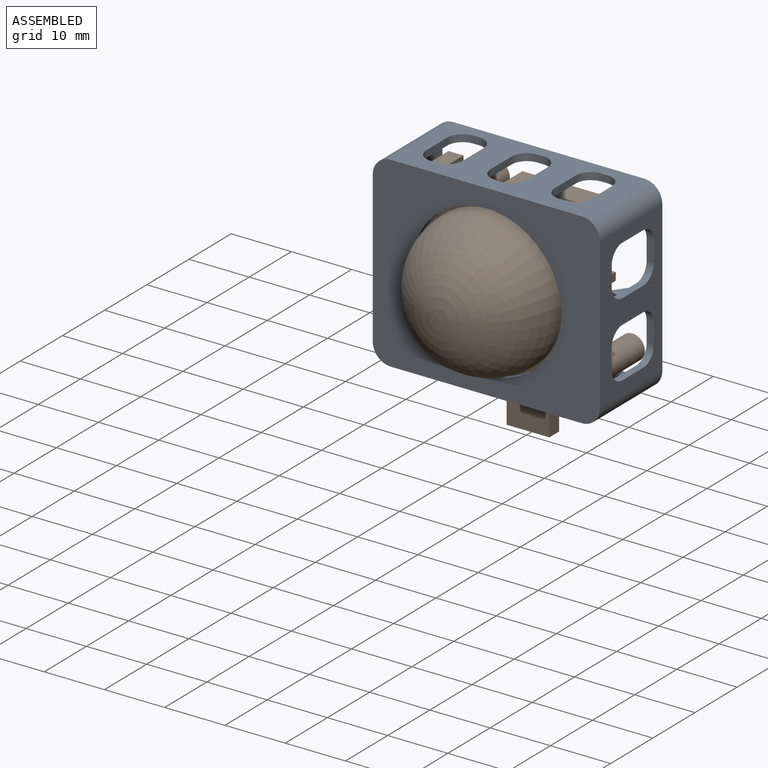
[diagram: assembled view]
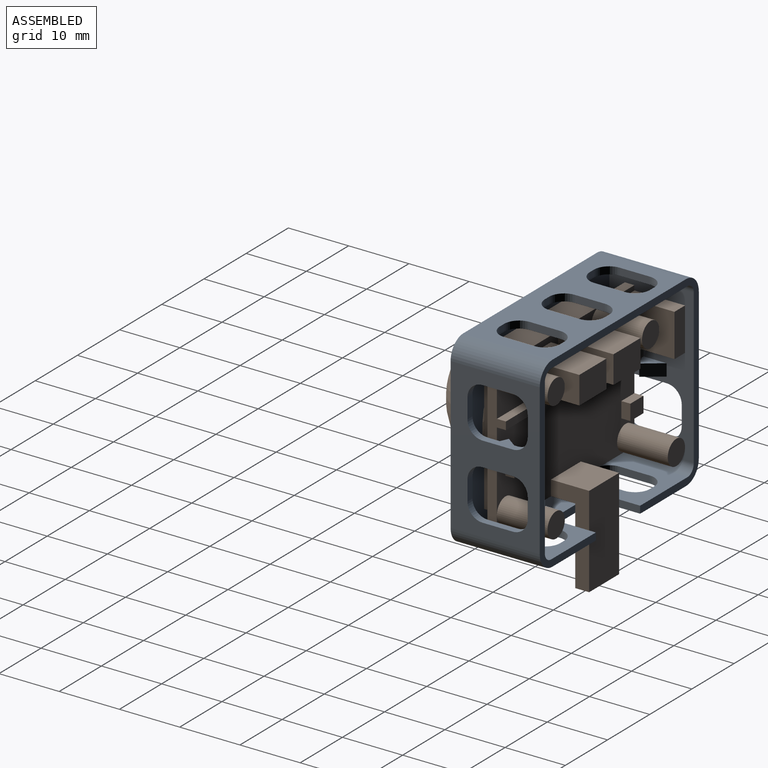
[diagram: assembled view, second angle]
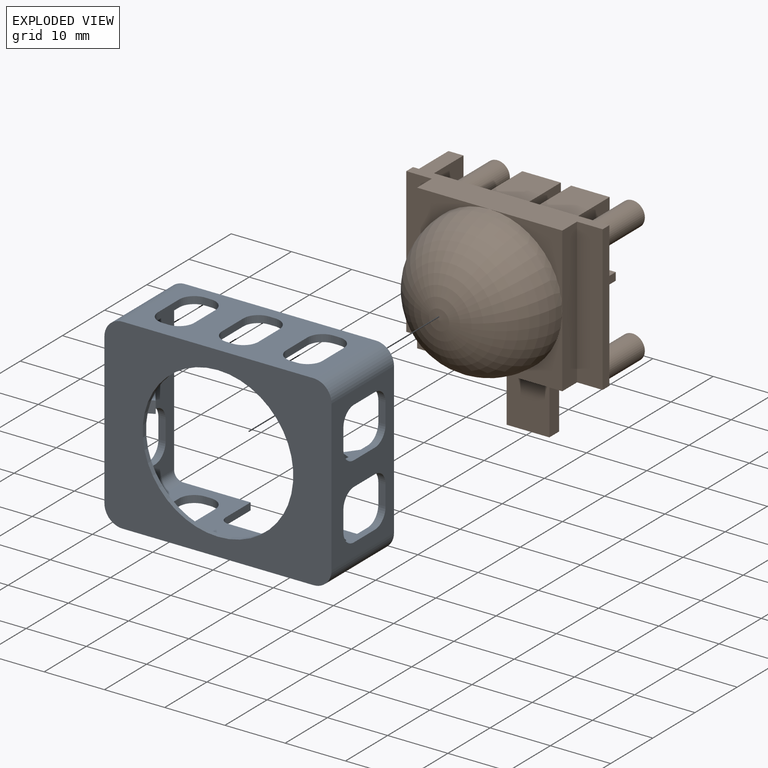
[diagram: exploded view]
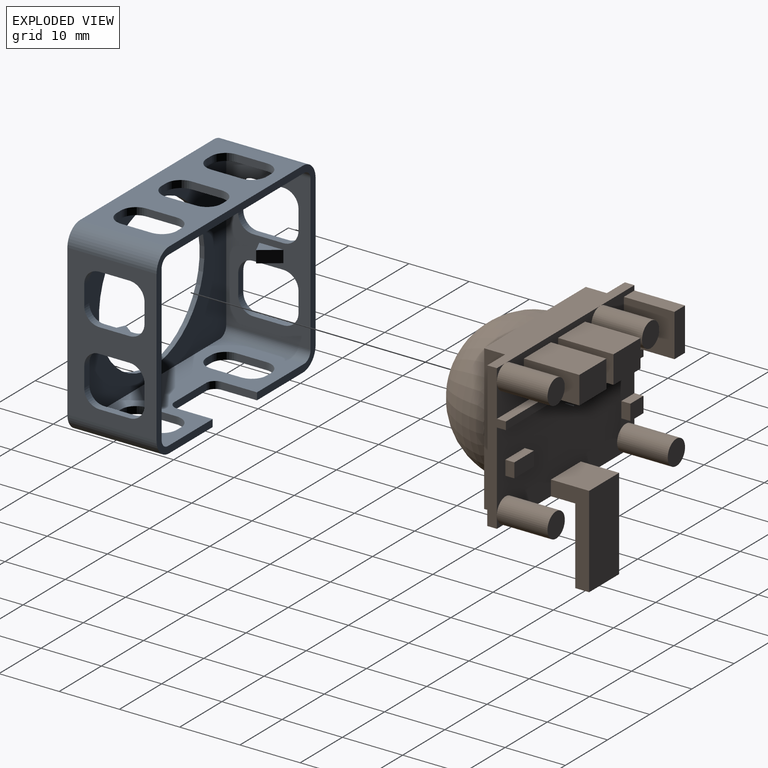
[diagram: exploded view, second angle]
ASSEMBLY  parts=2 mates=2
PART A: 105 faces, bbox 37.7x14.8x31 mm
  f0: plane 32.3x14mm, normal (0,0,1), area 266.2mm2, adj f11,f12,f16,f19,f20,f21,f22,f23
  f1: plane 31.7x14.8mm, normal (0,0,-1), area 283.2mm2, adj f10,f15,f16,f18,f20,f21,f22,f23
  f2: plane 31.7x14.8mm, normal (0,0,1), area 305.3mm2, adj f8,f9,f16,f18,f65,f66,f67,f68
  f3: plane 32.3x14mm, normal (0,0,-1), area 288.3mm2, adj f13,f14,f16,f19,f65,f66,f67,f68
  f4: plane 25.64x14mm, normal (1,0,0), area 195.3mm2, adj f12,f13,f16,f19,f25,f26,f27,f28
  f5: plane 25.04x14.8mm, normal (1,0,0), area 214.9mm2, adj f8,f15,f16,f18,f33,f34,f35,f36
  f6: plane 25.04x14.8mm, normal (-1,0,0), area 214.9mm2, adj f9,f10,f16,f18,f49,f50,f51,f52
  f7: plane 25.64x14mm, normal (-1,0,0), area 195.3mm2, adj f11,f14,f16,f19,f29,f30,f31,f32
  f8: cylinder r=3mm len=14.8mm, axis (0,-1,0), area 69.7mm2, adj f2,f5,f16,f18
  f9: cylinder r=3mm len=14.8mm, axis (0,-1,0), area 69.7mm2, adj f2,f6,f16,f18
  f10: cylinder r=3mm len=14.8mm, axis (0,-1,0), area 69.7mm2, adj f1,f6,f16,f18
  f11: cylinder r=1.5mm len=14mm, axis (0,-1,0), area 33mm2, adj f0,f7,f16,f19
  f12: cylinder r=1.5mm len=14mm, axis (0,-1,0), area 33mm2, adj f0,f4,f16,f19
  f13: cylinder r=1.5mm len=14mm, axis (0,-1,0), area 33mm2, adj f3,f4,f16,f19
  f14: cylinder r=1.5mm len=14mm, axis (0,-1,0), area 33mm2, adj f3,f7,f16,f19
  f15: cylinder r=3mm len=14.8mm, axis (0,-1,0), area 69.7mm2, adj f1,f5,f16,f18
  f16: plane 37.7x31.04mm, normal (0,1,0), area 140.8mm2, adj f0,f1,f2,f3,f4,f5,f6,f7
  f17: cylinder r=12.5mm len=25mm, axis (0,1,0), area 62.8mm2, adj f18,f19
  f18: plane 37.7x31.04mm, normal (0,-1,0), area 671.6mm2, adj f1,f2,f5,f6,f8,f9,f10,f15
  f19: plane 35.3x28.64mm, normal (0,1,0), area 518.2mm2, adj f0,f3,f4,f7,f11,f12,f13,f14
  f20: plane 5.9x1.2mm, normal (-1,0,0), area 7.1mm2, adj f0,f1,f16,f21
  f21: cylinder r=1.5mm len=1.5mm, axis (0,0,-1), area 2.8mm2, adj f0,f1,f20,f22
  f22: plane 7.5x1.2mm, normal (0,1,0), area 9mm2, adj f0,f1,f21,f23
  f23: cylinder r=1.5mm len=1.5mm, axis (0,0,-1), area 2.8mm2, adj f0,f1,f22,f24
  f24: plane 5.9x1.2mm, normal (1,0,0), area 7.1mm2, adj f0,f1,f16,f23
  f25: plane 2.2x2mm, normal (0.41,-0.91,0), area 4.8mm2, adj f4,f26,f27,f28
  f26: plane 3x2.2mm, normal (0.81,0.59,0), area 7.4mm2, adj f4,f25,f27,f28
  f27: plane 4x2.2mm, normal (0,0,-1), area 4.4mm2, adj f4,f25,f26
  f28: plane 4x2.2mm, normal (0,0,1), area 4.4mm2, adj f4,f25,f26
  f29: plane 3x2.2mm, normal (-0.81,0.59,0), area 7.4mm2, adj f7,f30,f31,f32
  f30: plane 2.2x2mm, normal (-0.41,-0.91,0), area 4.8mm2, adj f7,f29,f31,f32
  f31: plane 4x2.2mm, normal (0,0,1), area 4.4mm2, adj f7,f29,f30
  f32: plane 4x2.2mm, normal (0,0,-1), area 4.4mm2, adj f7,f29,f30
  f33: plane 3.32x1.2mm, normal (0,-1,0), area 4mm2, adj f5,f7,f34,f40
  f34: cylinder r=2.5mm len=2.5mm, axis (1,0,0), area 4.7mm2, adj f5,f7,f33,f35
  f35: plane 5x1.2mm, normal (0,0,1), area 6mm2, adj f5,f7,f34,f36
  f36: cylinder r=2.5mm len=2.5mm, axis (1,0,0), area 4.7mm2, adj f5,f7,f35,f37
  f37: plane 3.32x1.2mm, normal (0,1,0), area 4mm2, adj f5,f7,f36,f38
  f38: cylinder r=2.5mm len=2.5mm, axis (1,0,0), area 4.7mm2, adj f5,f7,f37,f39
  f39: plane 5x1.2mm, normal (0,0,-1), area 6mm2, adj f5,f7,f38,f40
  f40: cylinder r=2.5mm len=2.5mm, axis (1,0,0), area 4.7mm2, adj f5,f7,f33,f39
  f41: cylinder r=2.5mm len=2.5mm, axis (1,0,0), area 4.7mm2, adj f5,f7,f42,f48
  f42: plane 3.32x1.2mm, normal (0,1,0), area 4mm2, adj f5,f7,f41,f43
  f43: cylinder r=2.5mm len=2.5mm, axis (1,0,0), area 4.7mm2, adj f5,f7,f42,f44
  f44: plane 5x1.2mm, normal (0,0,-1), area 6mm2, adj f5,f7,f43,f45
  f45: cylinder r=2.5mm len=2.5mm, axis (1,0,0), area 4.7mm2, adj f5,f7,f44,f46
  f46: plane 3.32x1.2mm, normal (0,-1,0), area 4mm2, adj f5,f7,f45,f47
  f47: cylinder r=2.5mm len=2.5mm, axis (1,0,0), area 4.7mm2, adj f5,f7,f46,f48
  f48: plane 5x1.2mm, normal (0,0,1), area 6mm2, adj f5,f7,f41,f47
  f49: cylinder r=2.5mm len=2.5mm, axis (1,0,0), area 4.7mm2, adj f4,f6,f50,f56
  f50: plane 5x1.2mm, normal (0,0,-1), area 6mm2, adj f4,f6,f49,f51
  f51: cylinder r=2.5mm len=2.5mm, axis (1,0,0), area 4.7mm2, adj f4,f6,f50,f52
  f52: plane 3.32x1.2mm, normal (0,1,0), area 4mm2, adj f4,f6,f51,f53
  f53: cylinder r=2.5mm len=2.5mm, axis (1,0,0), area 4.7mm2, adj f4,f6,f52,f54
  f54: plane 5x1.2mm, normal (0,0,1), area 6mm2, adj f4,f6,f53,f55
  f55: cylinder r=2.5mm len=2.5mm, axis (1,0,0), area 4.7mm2, adj f4,f6,f54,f56
  f56: plane 3.32x1.2mm, normal (0,-1,0), area 4mm2, adj f4,f6,f49,f55
  f57: plane 5x1.2mm, normal (0,0,1), area 6mm2, adj f4,f6,f58,f64
  f58: cylinder r=2.5mm len=2.5mm, axis (1,0,0), area 4.7mm2, adj f4,f6,f57,f59
  f59: plane 3.32x1.2mm, normal (0,-1,0), area 4mm2, adj f4,f6,f58,f60
  f60: cylinder r=2.5mm len=2.5mm, axis (1,0,0), area 4.7mm2, adj f4,f6,f59,f61
  f61: plane 5x1.2mm, normal (0,0,-1), area 6mm2, adj f4,f6,f60,f62
  f62: cylinder r=2.5mm len=2.5mm, axis (1,0,0), area 4.7mm2, adj f4,f6,f61,f63
  f63: plane 3.32x1.2mm, normal (0,1,0), area 4mm2, adj f4,f6,f62,f64
  f64: cylinder r=2.5mm len=2.5mm, axis (1,0,0), area 4.7mm2, adj f4,f6,f57,f63
  f65: cylinder r=2.5mm len=2.5mm, axis (0,0,-1), area 4.7mm2, adj f2,f3,f66,f72
  f66: plane 5x1.2mm, normal (1,0,0), area 6mm2, adj f2,f3,f65,f67
  f67: cylinder r=2.5mm len=2.5mm, axis (0,0,-1), area 4.7mm2, adj f2,f3,f66,f68
  f68: plane 1.2x1mm, normal (0,1,0), area 1.2mm2, adj f2,f3,f67,f69
  f69: cylinder r=2.5mm len=2.5mm, axis (0,0,-1), area 4.7mm2, adj f2,f3,f68,f70
  f70: plane 5x1.2mm, normal (-1,0,0), area 6mm2, adj f2,f3,f69,f71
  f71: cylinder r=2.5mm len=2.5mm, axis (0,0,-1), area 4.7mm2, adj f2,f3,f70,f72
  f72: plane 1.2x1mm, normal (0,-1,0), area 1.2mm2, adj f2,f3,f65,f71
  f73: plane 1.2x1mm, normal (0,-1,0), area 1.2mm2, adj f2,f3,f74,f80
  f74: cylinder r=2.5mm len=2.5mm, axis (0,0,-1), area 4.7mm2, adj f2,f3,f73,f75
  f75: plane 5x1.2mm, normal (1,0,0), area 6mm2, adj f2,f3,f74,f76
  f76: cylinder r=2.5mm len=2.5mm, axis (0,0,-1), area 4.7mm2, adj f2,f3,f75,f77
  f77: plane 1.2x1mm, normal (0,1,0), area 1.2mm2, adj f2,f3,f76,f78
  f78: cylinder r=2.5mm len=2.5mm, axis (0,0,-1), area 4.7mm2, adj f2,f3,f77,f79
  f79: plane 5x1.2mm, normal (-1,0,0), area 6mm2, adj f2,f3,f78,f80
  f80: cylinder r=2.5mm len=2.5mm, axis (0,0,-1), area 4.7mm2, adj f2,f3,f73,f79
  f81: plane 5x1.2mm, normal (-1,0,0), area 6mm2, adj f2,f3,f82,f88
  f82: cylinder r=2.5mm len=2.5mm, axis (0,0,-1), area 4.7mm2, adj f2,f3,f81,f83
  f83: plane 1.2x1mm, normal (0,-1,0), area 1.2mm2, adj f2,f3,f82,f84
  f84: cylinder r=2.5mm len=2.5mm, axis (0,0,-1), area 4.7mm2, adj f2,f3,f83,f85
  f85: plane 5x1.2mm, normal (1,0,0), area 6mm2, adj f2,f3,f84,f86
  f86: cylinder r=2.5mm len=2.5mm, axis (0,0,-1), area 4.7mm2, adj f2,f3,f85,f87
  f87: plane 1.2x1mm, normal (0,1,0), area 1.2mm2, adj f2,f3,f86,f88
  f88: cylinder r=2.5mm len=2.5mm, axis (0,0,-1), area 4.7mm2, adj f2,f3,f81,f87
  f89: plane 5x1.2mm, normal (-1,0,0), area 6mm2, adj f0,f1,f90,f96
  f90: cylinder r=2.5mm len=2.5mm, axis (0,0,1), area 4.7mm2, adj f0,f1,f89,f91
  f91: plane 1.2x1mm, normal (0,-1,0), area 1.2mm2, adj f0,f1,f90,f92
  f92: cylinder r=2.5mm len=2.5mm, axis (0,0,1), area 4.7mm2, adj f0,f1,f91,f93
  f93: plane 5x1.2mm, normal (1,0,0), area 6mm2, adj f0,f1,f92,f94
  f94: cylinder r=2.5mm len=2.5mm, axis (0,0,1), area 4.7mm2, adj f0,f1,f93,f95
  f95: plane 1.2x1mm, normal (0,1,0), area 1.2mm2, adj f0,f1,f94,f96
  f96: cylinder r=2.5mm len=2.5mm, axis (0,0,1), area 4.7mm2, adj f0,f1,f89,f95
  f97: cylinder r=2.5mm len=2.5mm, axis (0,0,1), area 4.7mm2, adj f0,f1,f98,f104
  f98: plane 5x1.2mm, normal (1,0,0), area 6mm2, adj f0,f1,f97,f99
  f99: cylinder r=2.5mm len=2.5mm, axis (0,0,1), area 4.7mm2, adj f0,f1,f98,f100
  f100: plane 1.2x1mm, normal (0,1,0), area 1.2mm2, adj f0,f1,f99,f101
  f101: cylinder r=2.5mm len=2.5mm, axis (0,0,1), area 4.7mm2, adj f0,f1,f100,f102
  f102: plane 5x1.2mm, normal (-1,0,0), area 6mm2, adj f0,f1,f101,f103
  f103: cylinder r=2.5mm len=2.5mm, axis (0,0,1), area 4.7mm2, adj f0,f1,f102,f104
  f104: plane 1.2x1mm, normal (0,-1,0), area 1.2mm2, adj f0,f1,f97,f103
PART B: 64 faces, bbox 32.6x26.4x36.8 mm
  f0: plane 32.6x9.15mm, normal (0,0,1), area 165.3mm2, adj f1,f2,f3,f5,f6,f7,f8,f9
  f1: plane 32.6x24.1mm, normal (0,-1,0), area 591.1mm2, adj f0,f8,f9,f10,f19,f21,f23,f25
  f2: plane 2.05x2.05mm, normal (0,-1,0), area 0.9mm2, adj f0,f8,f21
  f3: plane 2.05x2.05mm, normal (0,-1,0), area 0.9mm2, adj f0,f9,f19
  f4: plane 12.05x12.05mm, normal (0,1,0), area 31.2mm2, adj f10,f13,f16
  f5: plane 12.05x12.05mm, normal (0,1,0), area 31.2mm2, adj f0,f13,f16
  f6: plane 12.05x12.05mm, normal (0,1,0), area 31.2mm2, adj f0,f14,f16
  f7: plane 24.1x4.25mm, normal (0,1,0), area 102.4mm2, adj f0,f8,f10,f13
  f8: plane 24.1x3.1mm, normal (1,0,0), area 40.5mm2, adj f0,f1,f2,f7,f10,f12,f46,f47
  f9: plane 24.1x10mm, normal (-1,0,0), area 104mm2, adj f0,f1,f3,f10,f11,f27,f29,f30
  f10: plane 32.6x5.1mm, normal (0,0,-1), area 136.5mm2, adj f1,f4,f7,f8,f9,f11,f12,f13
  f11: plane 24.1x4.25mm, normal (0,1,0), area 102.4mm2, adj f0,f9,f10,f14
  f12: plane 2.05x2.05mm, normal (0,-1,0), area 0.9mm2, adj f8,f10,f23
  f13: plane 24.1x3.5mm, normal (1,0,0), area 84.4mm2, adj f0,f4,f5,f7,f10
  f14: plane 24.1x3.5mm, normal (-1,0,0), area 84.4mm2, adj f0,f6,f10,f11,f15
  f15: plane 12.05x12.05mm, normal (0,1,0), area 31.2mm2, adj f10,f14,f16
  f16: cylinder r=12.05mm len=24.1mm, axis (0,-1,0), area 7.6mm2, adj f4,f5,f6,f15,f18
  f17: plane 0.1x0.1mm, normal (0,1,0), area 0mm2, adj f18
  f18: torus R=0.05mm, axis (0,-1,0), area 910.7mm2, adj f16,f17
  f19: cylinder r=2.05mm len=8.4mm, axis (0,1,0), area 108.2mm2, adj f1,f3,f20
  f20: plane 4.1x4.1mm, normal (0,-1,0), area 13.2mm2, adj f19
  f21: cylinder r=2.05mm len=8.4mm, axis (0,1,0), area 108.2mm2, adj f1,f2,f22
  f22: plane 4.1x4.1mm, normal (0,-1,0), area 13.2mm2, adj f21
  f23: cylinder r=2.05mm len=8.4mm, axis (0,1,0), area 108.2mm2, adj f1,f12,f24
  f24: plane 4.1x4.1mm, normal (0,-1,0), area 13.2mm2, adj f23
  f25: cylinder r=2.05mm len=8.4mm, axis (0,1,0), area 108.2mm2, adj f1,f26
  f26: plane 4.1x4.1mm, normal (0,-1,0), area 13.2mm2, adj f25
  f27: plane 8.4x2.5mm, normal (0,0,-1), area 21mm2, adj f1,f9,f28,f30
  f28: plane 8.4x7.1mm, normal (1,0,0), area 59.6mm2, adj f1,f27,f29,f30
  f29: plane 8.4x2.5mm, normal (0,0,1), area 21mm2, adj f1,f9,f28,f30
  f30: plane 7.1x2.5mm, normal (0,-1,0), area 17.7mm2, adj f9,f27,f28,f29
  f31: plane 9.2x4.6mm, normal (-1,0,0), area 42.3mm2, adj f1,f32,f34,f35
  f32: plane 9.2x6.4mm, normal (0,0,-1), area 58.9mm2, adj f1,f31,f33,f35
  f33: plane 9.2x4.6mm, normal (1,0,0), area 42.3mm2, adj f1,f32,f34,f35
  f34: plane 9.2x6.4mm, normal (0,0,1), area 58.9mm2, adj f1,f31,f33,f35
  f35: plane 6.4x4.6mm, normal (0,-1,0), area 29.4mm2, adj f31,f32,f33,f34
  f36: plane 9.2x4.6mm, normal (-1,0,0), area 42.3mm2, adj f1,f37,f39,f40
  f37: plane 9.2x6.4mm, normal (0,0,-1), area 58.9mm2, adj f1,f36,f38,f40
  f38: plane 9.2x4.6mm, normal (1,0,0), area 42.3mm2, adj f1,f37,f39,f40
  f39: plane 9.2x6.4mm, normal (0,0,1), area 58.9mm2, adj f1,f36,f38,f40
  f40: plane 6.4x4.6mm, normal (0,-1,0), area 29.4mm2, adj f36,f37,f38,f39
  f41: plane 2.4x1.5mm, normal (-1,0,0), area 3.6mm2, adj f1,f42,f44,f45
  f42: plane 4.6x1.5mm, normal (0,0,-1), area 6.9mm2, adj f1,f41,f43,f45
  f43: plane 2.4x1.5mm, normal (1,0,0), area 3.6mm2, adj f1,f42,f44,f45
  f44: plane 4.6x1.5mm, normal (0,0,1), area 6.9mm2, adj f1,f41,f43,f45
  f45: plane 4.6x2.4mm, normal (0,-1,0), area 11mm2, adj f41,f42,f43,f44
  f46: plane 16.6x1.5mm, normal (0,0,-1), area 24.9mm2, adj f1,f8,f48,f49
  f47: plane 16.6x1.5mm, normal (0,0,1), area 24.9mm2, adj f1,f8,f48,f49
  f48: plane 1.5x1.3mm, normal (-1,0,0), area 1.9mm2, adj f1,f46,f47,f49
  f49: plane 16.6x1.3mm, normal (0,-1,0), area 21.6mm2, adj f8,f46,f47,f48
  f50: plane 3.1x1.5mm, normal (0,0,1), area 4.6mm2, adj f1,f9,f52,f53
  f51: plane 3.1x1.5mm, normal (0,0,-1), area 4.6mm2, adj f1,f9,f52,f53
  f52: plane 2.6x1.5mm, normal (1,0,0), area 3.9mm2, adj f1,f50,f51,f53
  f53: plane 3.1x2.6mm, normal (0,-1,0), area 8.1mm2, adj f9,f50,f51,f52
  f54: plane 3.1x1.5mm, normal (0,0,-1), area 4.6mm2, adj f1,f9,f55,f57
  f55: plane 1.5x1.3mm, normal (1,0,0), area 2mm2, adj f1,f54,f56,f57
  f56: plane 3.1x1.5mm, normal (0,0,1), area 4.6mm2, adj f1,f9,f55,f57
  f57: plane 3.1x1.3mm, normal (0,-1,0), area 4mm2, adj f9,f54,f55,f56
  f58: plane 15.2x6.35mm, normal (-1,0,0), area 45.1mm2, adj f0,f1,f59,f61,f62,f63
  f59: plane 7.1x6.35mm, normal (0,0,-1), area 45.1mm2, adj f1,f58,f60,f61
  f60: plane 15.2x6.35mm, normal (1,0,0), area 45.1mm2, adj f0,f1,f59,f61,f62,f63
  f61: plane 15.2x7.1mm, normal (0,-1,0), area 107.9mm2, adj f58,f59,f60,f63
  f62: plane 12.7x7.1mm, normal (0,1,0), area 90.2mm2, adj f0,f58,f60,f63
  f63: plane 7.1x2.3mm, normal (0,0,1), area 16.3mm2, adj f58,f60,f61,f62
PLACE A t=(-9.36,0.4,-9.36)mm
PLACE B rot(axis=(1,0,0),180deg) t=(-9.36,5.5,-9.36)mm
MATE cylindrical A.f17 <-> B.f16  axis (0,1,0) through (-9.36,0,-9.36)mm
MATE planar B.f4 <-> A.f17  axis (0,-1,0) through (0,0.4,0)mm
